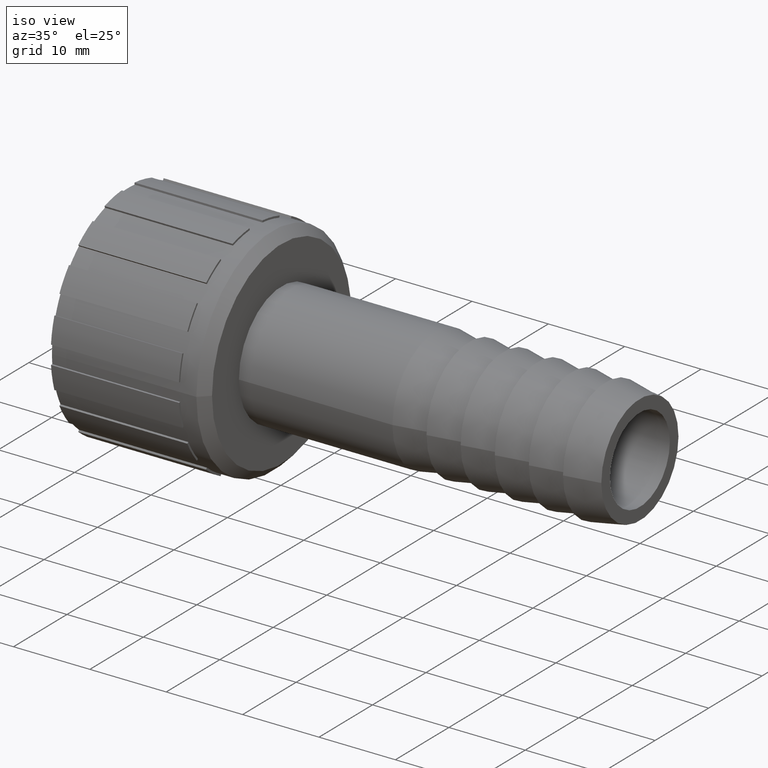
[diagram: clean part render]
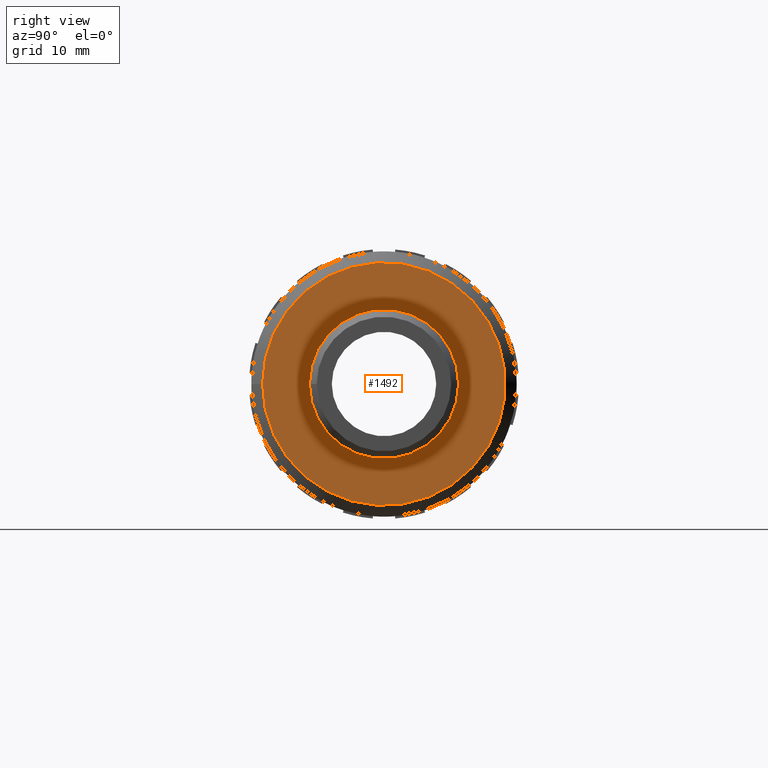
[diagram: tour spotlight — one face highlighted and labeled with its STEP entity id]
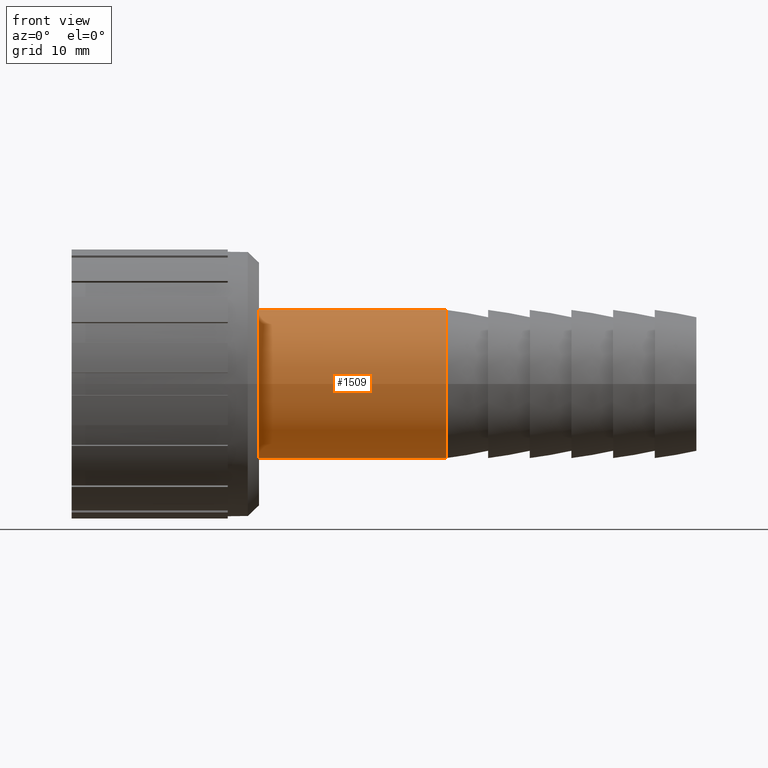
[diagram: tour spotlight — one face highlighted and labeled with its STEP entity id]
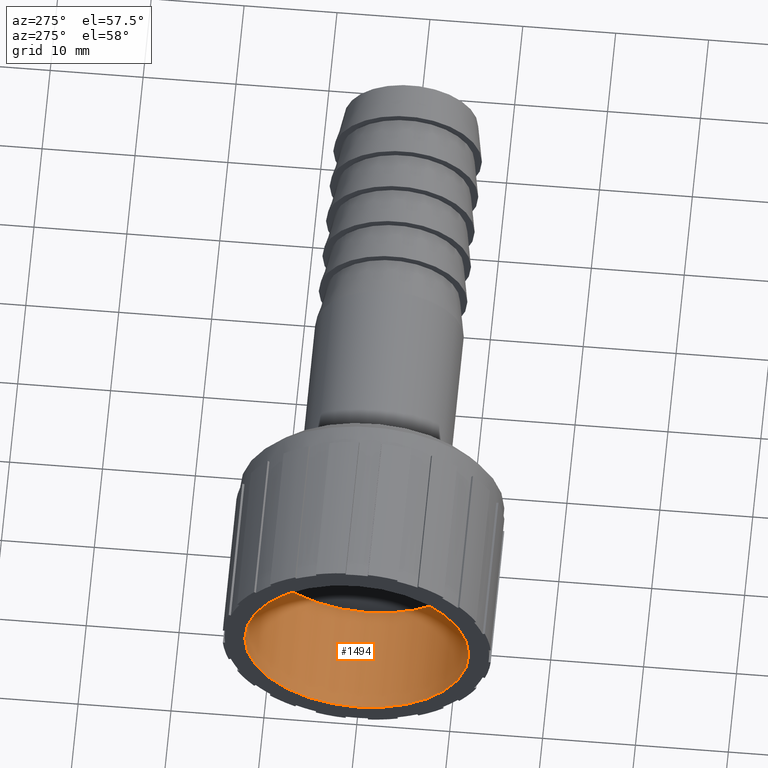
[diagram: tour spotlight — one face highlighted and labeled with its STEP entity id]
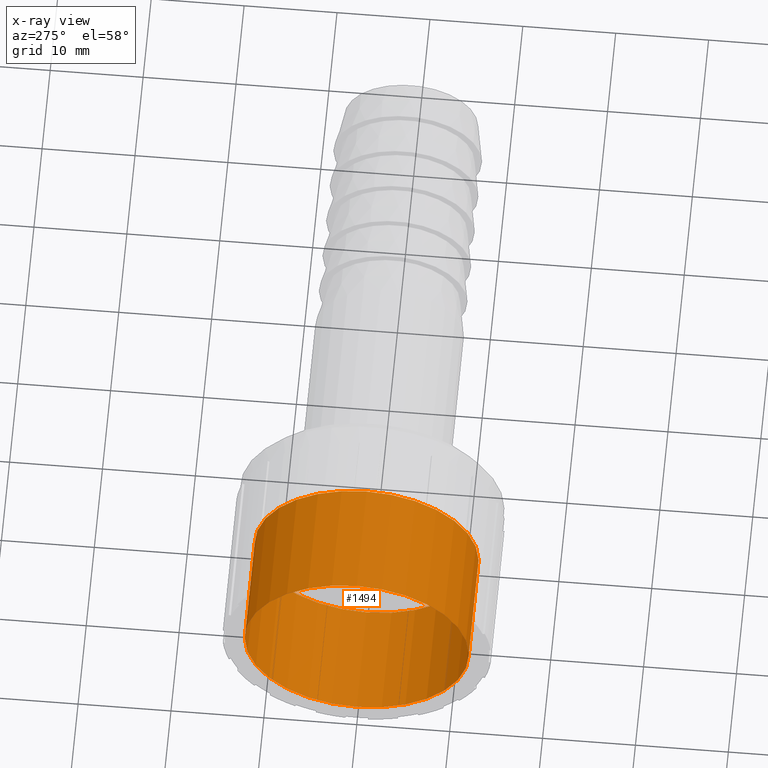
[diagram: x-ray of the same camera — body ghosted, this tour face saturated]
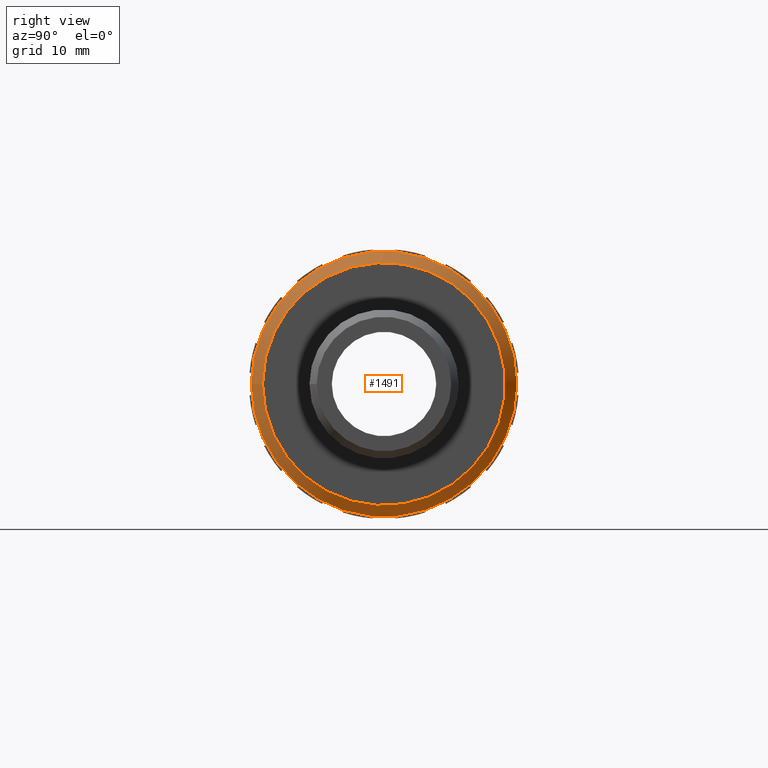
[diagram: tour spotlight — one face highlighted and labeled with its STEP entity id]
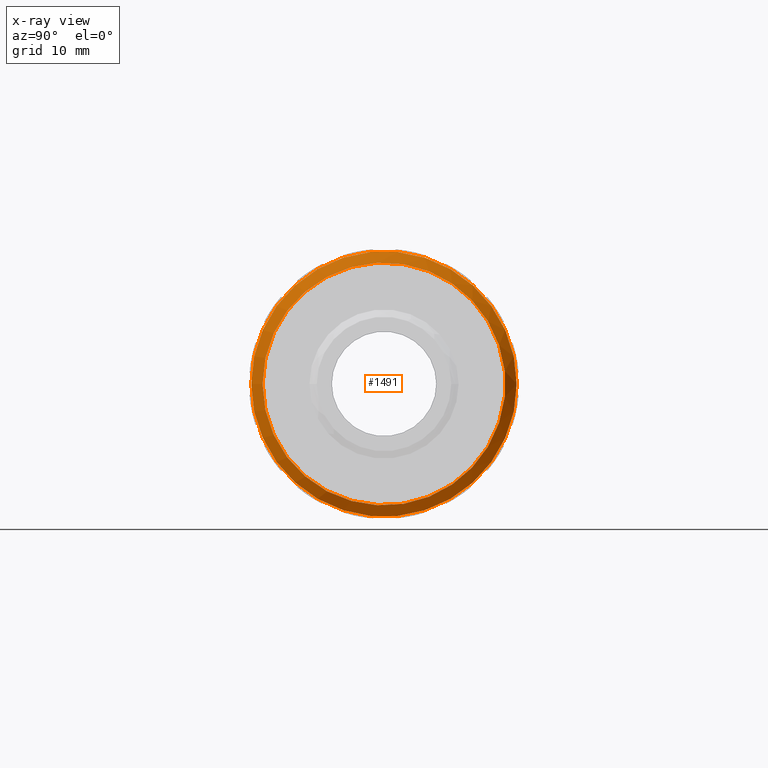
[diagram: x-ray of the same camera — body ghosted, this tour face saturated]
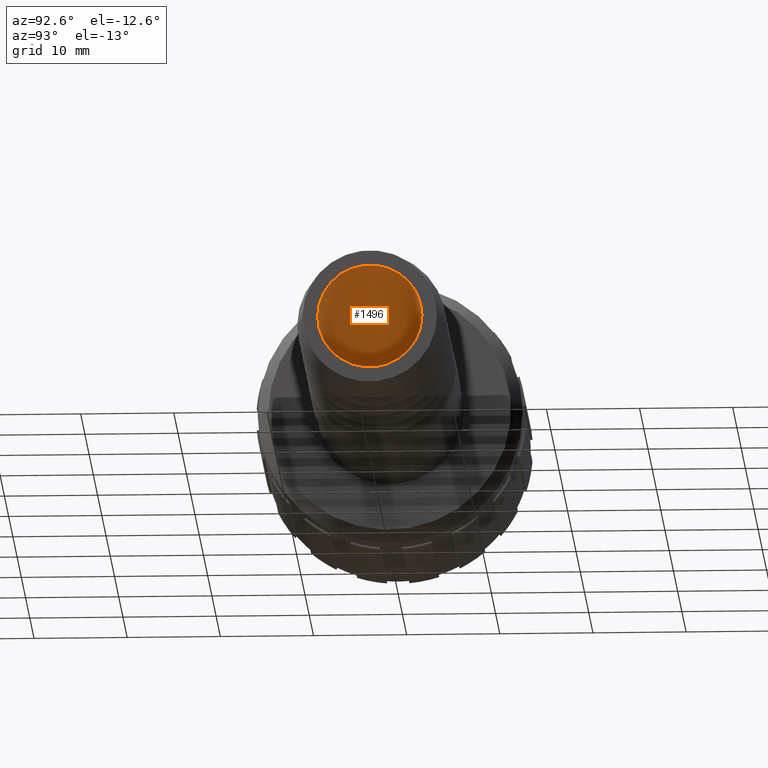
[diagram: tour spotlight — one face highlighted and labeled with its STEP entity id]
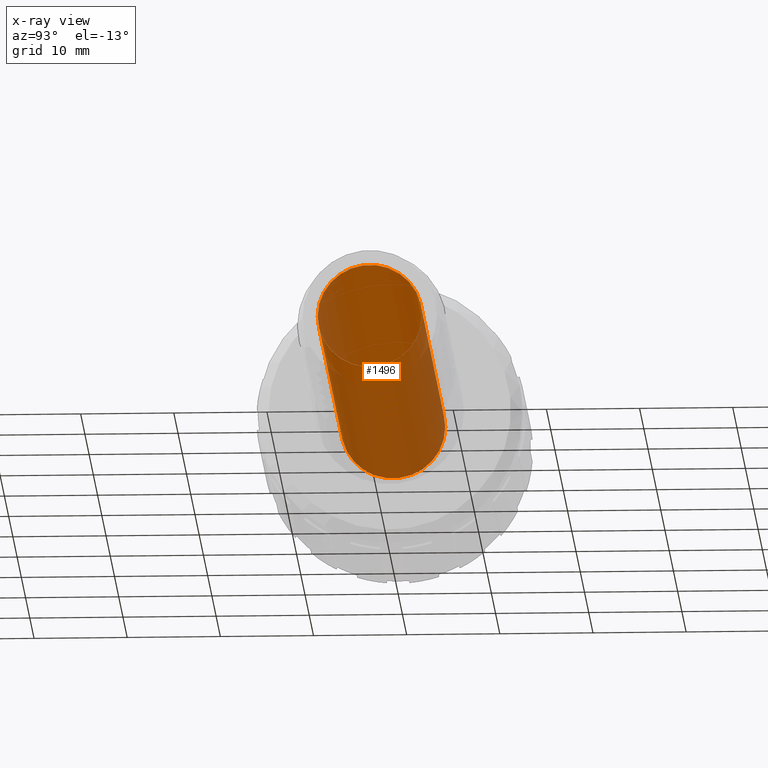
[diagram: x-ray of the same camera — body ghosted, this tour face saturated]
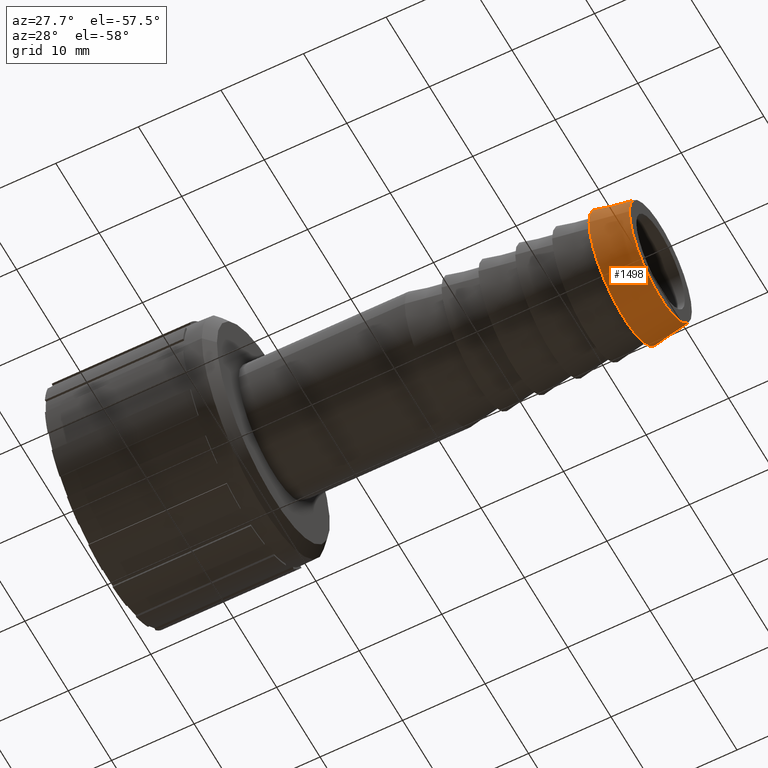
[diagram: tour spotlight — one face highlighted and labeled with its STEP entity id]
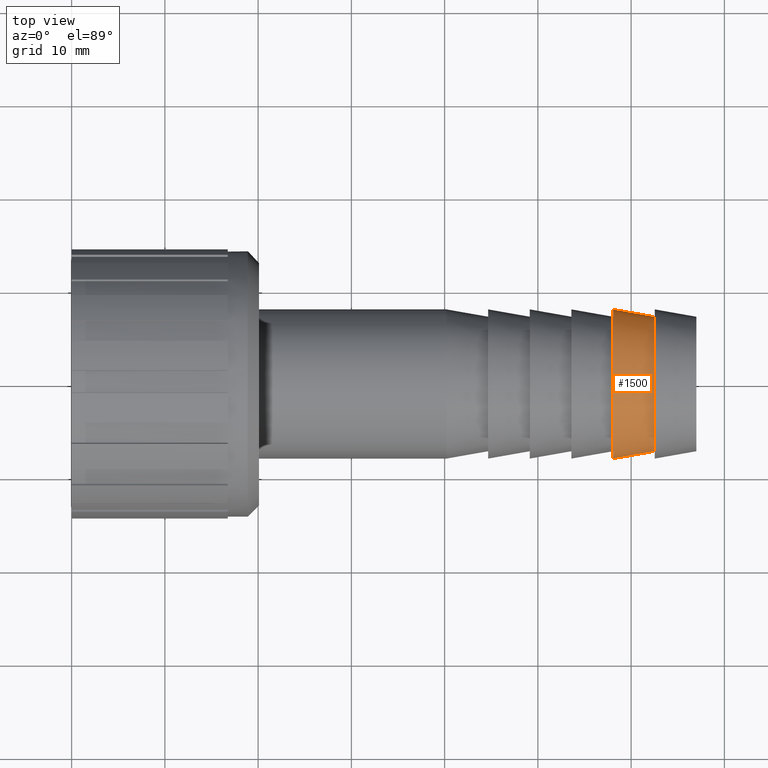
[diagram: tour spotlight — one face highlighted and labeled with its STEP entity id]
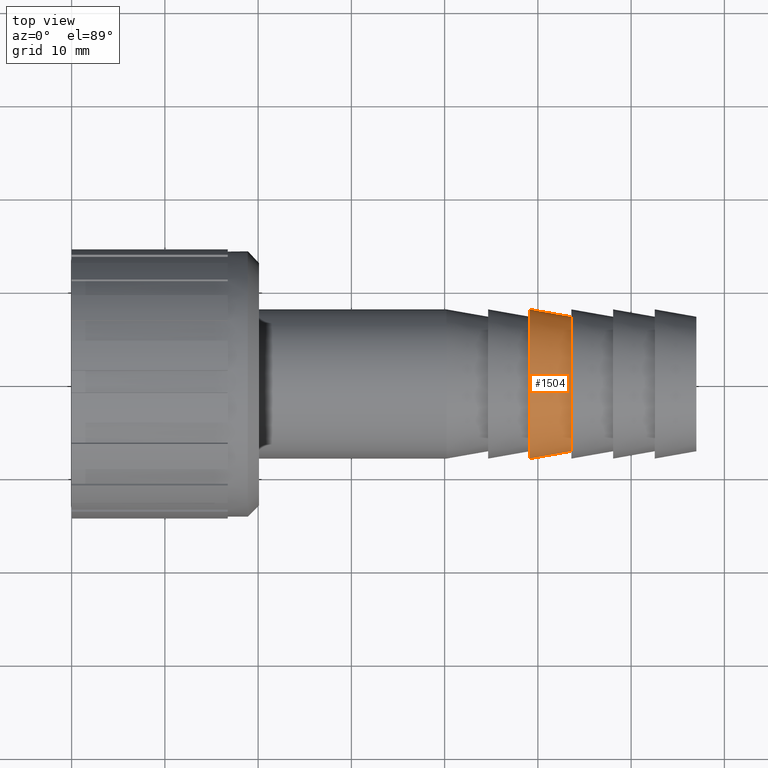
[diagram: tour spotlight — one face highlighted and labeled with its STEP entity id]
A machine part: a face-by-face anatomy tour. The part has 84 B-rep faces; the first image is the clean iso view, then the 8 largest visible faces are spotlighted one at a time (largest first), each with its STEP entity span.

Face 1 — right view, entity #1492. In plain terms, the highlighted planar face has unit normal (1, 0, 0).
Definition (entity closure, byte-faithful):
#44=FACE_BOUND('',#298,.T.);
#127=CIRCLE('',#1643,13.02318);
#129=CIRCLE('',#1646,8.);
#211=FACE_OUTER_BOUND('',#297,.T.);
#297=EDGE_LOOP('',(#1270));
#298=EDGE_LOOP('',(#1271));
#718=VERTEX_POINT('',#2532);
#720=VERTEX_POINT('',#2537);
#929=EDGE_CURVE('',#718,#718,#127,.T.);
#931=EDGE_CURVE('',#720,#720,#129,.T.);
#1270=ORIENTED_EDGE('',*,*,#929,.F.);
#1271=ORIENTED_EDGE('',*,*,#931,.T.);
#1418=PLANE('',#1645);
#1492=ADVANCED_FACE('',(#211,#44),#1418,.T.);
#1643=AXIS2_PLACEMENT_3D('',#2533,#2071,#2072);
#1645=AXIS2_PLACEMENT_3D('',#2536,#2075,#2076);
#1646=AXIS2_PLACEMENT_3D('',#2538,#2077,#2078);
#2071=DIRECTION('center_axis',(-1.,0.,0.));
#2072=DIRECTION('ref_axis',(0.,1.,0.));
#2075=DIRECTION('center_axis',(1.,0.,0.));
#2076=DIRECTION('ref_axis',(0.,0.,-1.));
#2077=DIRECTION('center_axis',(-1.,0.,0.));
#2078=DIRECTION('ref_axis',(0.,0.,1.));
#2532=CARTESIAN_POINT('',(20.1,-13.02318,1.59487957017198E-15));
#2533=CARTESIAN_POINT('Origin',(20.1,0.,0.));
#2536=CARTESIAN_POINT('Origin',(20.1,-14.22903,0.));
#2537=CARTESIAN_POINT('',(20.1,-8.,0.));
#2538=CARTESIAN_POINT('Origin',(20.1,0.,0.));

Face 2 — front view, entity #1509. In plain terms, the highlighted cylindrical surface (bore or boss wall) has radius 8 mm, axis along (-1, 0, 0).
Definition (entity closure, byte-faithful):
#41=CYLINDRICAL_SURFACE('',#1678,8.);
#61=FACE_BOUND('',#332,.T.);
#129=CIRCLE('',#1646,8.);
#144=CIRCLE('',#1677,8.);
#228=FACE_OUTER_BOUND('',#331,.T.);
#331=EDGE_LOOP('',(#1367));
#332=EDGE_LOOP('',(#1368));
#720=VERTEX_POINT('',#2537);
#735=VERTEX_POINT('',#2583);
#931=EDGE_CURVE('',#720,#720,#129,.T.);
#946=EDGE_CURVE('',#735,#735,#144,.T.);
#1367=ORIENTED_EDGE('',*,*,#946,.T.);
#1368=ORIENTED_EDGE('',*,*,#931,.F.);
#1509=ADVANCED_FACE('',(#228,#61),#41,.T.);
#1646=AXIS2_PLACEMENT_3D('',#2538,#2077,#2078);
#1677=AXIS2_PLACEMENT_3D('',#2584,#2139,#2140);
#1678=AXIS2_PLACEMENT_3D('',#2585,#2141,#2142);
#2077=DIRECTION('center_axis',(-1.,0.,0.));
#2078=DIRECTION('ref_axis',(0.,0.,1.));
#2139=DIRECTION('center_axis',(-1.,0.,0.));
#2140=DIRECTION('ref_axis',(0.,0.,1.));
#2141=DIRECTION('center_axis',(-1.,0.,0.));
#2142=DIRECTION('ref_axis',(0.,-1.,0.));
#2537=CARTESIAN_POINT('',(20.1,-8.,0.));
#2538=CARTESIAN_POINT('Origin',(20.1,0.,0.));
#2583=CARTESIAN_POINT('',(40.2,-8.,0.));
#2584=CARTESIAN_POINT('Origin',(40.2,0.,0.));
#2585=CARTESIAN_POINT('Origin',(30.15,0.,0.));

Face 3 — auxiliary view, entity #1494. An x-ray twin of the same camera follows (body ghosted, this face saturated) — the face is partly hidden behind the body. In plain terms, the highlighted cylindrical surface (bore or boss wall) has radius 12.0585 mm, axis along (-1, 0, 0).
Definition (entity closure, byte-faithful):
#39=CYLINDRICAL_SURFACE('',#1648,12.0585);
#46=FACE_BOUND('',#302,.T.);
#94=CIRCLE('',#1575,12.0585);
#130=CIRCLE('',#1649,12.0585);
#213=FACE_OUTER_BOUND('',#301,.T.);
#301=EDGE_LOOP('',(#1337));
#302=EDGE_LOOP('',(#1338));
#713=VERTEX_POINT('',#2453);
#721=VERTEX_POINT('',#2541);
#890=EDGE_CURVE('',#713,#713,#94,.T.);
#932=EDGE_CURVE('',#721,#721,#130,.T.);
#1337=ORIENTED_EDGE('',*,*,#890,.T.);
#1338=ORIENTED_EDGE('',*,*,#932,.F.);
#1494=ADVANCED_FACE('',(#213,#46),#39,.F.);
#1575=AXIS2_PLACEMENT_3D('',#2454,#1929,#1930);
#1648=AXIS2_PLACEMENT_3D('',#2540,#2081,#2082);
#1649=AXIS2_PLACEMENT_3D('',#2542,#2083,#2084);
#1929=DIRECTION('center_axis',(-1.,0.,0.));
#1930=DIRECTION('ref_axis',(0.,0.,1.));
#2081=DIRECTION('center_axis',(-1.,0.,0.));
#2082=DIRECTION('ref_axis',(0.,-1.,0.));
#2083=DIRECTION('center_axis',(-1.,0.,0.));
#2084=DIRECTION('ref_axis',(0.,0.,1.));
#2453=CARTESIAN_POINT('',(0.,-12.0585,0.));
#2454=CARTESIAN_POINT('Origin',(0.,0.,0.));
#2540=CARTESIAN_POINT('Origin',(6.03,0.,0.));
#2541=CARTESIAN_POINT('',(12.06,-12.0585,0.));
#2542=CARTESIAN_POINT('Origin',(12.06,0.,0.));

Face 4 — right view, entity #1491. An x-ray twin of the same camera follows (body ghosted, this face saturated) — the face is partly hidden behind the body. In plain terms, the highlighted conical surface has half-angle 45 deg.
Definition (entity closure, byte-faithful):
#15=CONICAL_SURFACE('',#1642,13.626105,45.);
#43=FACE_BOUND('',#296,.T.);
#127=CIRCLE('',#1643,13.02318);
#128=CIRCLE('',#1644,14.22903);
#210=FACE_OUTER_BOUND('',#295,.T.);
#295=EDGE_LOOP('',(#1268));
#296=EDGE_LOOP('',(#1269));
#718=VERTEX_POINT('',#2532);
#719=VERTEX_POINT('',#2534);
#929=EDGE_CURVE('',#718,#718,#127,.T.);
#930=EDGE_CURVE('',#719,#719,#128,.T.);
#1268=ORIENTED_EDGE('',*,*,#929,.T.);
#1269=ORIENTED_EDGE('',*,*,#930,.T.);
#1491=ADVANCED_FACE('',(#210,#43),#15,.T.);
#1642=AXIS2_PLACEMENT_3D('',#2531,#2069,#2070);
#1643=AXIS2_PLACEMENT_3D('',#2533,#2071,#2072);
#1644=AXIS2_PLACEMENT_3D('',#2535,#2073,#2074);
#2069=DIRECTION('center_axis',(-1.,0.,0.));
#2070=DIRECTION('ref_axis',(0.,1.,0.));
#2071=DIRECTION('center_axis',(-1.,0.,0.));
#2072=DIRECTION('ref_axis',(0.,1.,0.));
#2073=DIRECTION('center_axis',(1.,0.,0.));
#2074=DIRECTION('ref_axis',(0.,1.,0.));
#2531=CARTESIAN_POINT('Origin',(19.497075,0.,0.));
#2532=CARTESIAN_POINT('',(20.1,-13.02318,1.59487957017198E-15));
#2533=CARTESIAN_POINT('Origin',(20.1,0.,0.));
#2534=CARTESIAN_POINT('',(18.89415,-14.22903,-1.74255360444717E-15));
#2535=CARTESIAN_POINT('Origin',(18.89415,0.,0.));

Face 5 — auxiliary view, entity #1496. An x-ray twin of the same camera follows (body ghosted, this face saturated) — the face is partly hidden behind the body. In plain terms, the highlighted cylindrical surface (bore or boss wall) has radius 5.6 mm, axis along (-1, 0, 0).
Definition (entity closure, byte-faithful):
#40=CYLINDRICAL_SURFACE('',#1652,5.6);
#48=FACE_BOUND('',#306,.T.);
#131=CIRCLE('',#1651,5.6);
#132=CIRCLE('',#1653,5.6);
#215=FACE_OUTER_BOUND('',#305,.T.);
#305=EDGE_LOOP('',(#1341));
#306=EDGE_LOOP('',(#1342));
#722=VERTEX_POINT('',#2544);
#723=VERTEX_POINT('',#2547);
#933=EDGE_CURVE('',#722,#722,#131,.T.);
#934=EDGE_CURVE('',#723,#723,#132,.T.);
#1341=ORIENTED_EDGE('',*,*,#933,.T.);
#1342=ORIENTED_EDGE('',*,*,#934,.F.);
#1496=ADVANCED_FACE('',(#215,#48),#40,.F.);
#1651=AXIS2_PLACEMENT_3D('',#2545,#2087,#2088);
#1652=AXIS2_PLACEMENT_3D('',#2546,#2089,#2090);
#1653=AXIS2_PLACEMENT_3D('',#2548,#2091,#2092);
#2087=DIRECTION('center_axis',(-1.,0.,0.));
#2088=DIRECTION('ref_axis',(0.,0.,1.));
#2089=DIRECTION('center_axis',(-1.,0.,0.));
#2090=DIRECTION('ref_axis',(0.,-1.,0.));
#2091=DIRECTION('center_axis',(-1.,0.,0.));
#2092=DIRECTION('ref_axis',(0.,0.,1.));
#2544=CARTESIAN_POINT('',(12.06,-5.6,0.));
#2545=CARTESIAN_POINT('Origin',(12.06,0.,0.));
#2546=CARTESIAN_POINT('Origin',(39.53,0.,0.));
#2547=CARTESIAN_POINT('',(67.,-5.6,0.));
#2548=CARTESIAN_POINT('Origin',(67.,0.,0.));

Face 6 — auxiliary view, entity #1498. In plain terms, the highlighted conical surface has half-angle 10 deg.
Definition (entity closure, byte-faithful):
#16=CONICAL_SURFACE('',#1656,7.60620307641776,9.99999999999999);
#50=FACE_BOUND('',#310,.T.);
#133=CIRCLE('',#1655,7.21240615283552);
#134=CIRCLE('',#1657,8.);
#217=FACE_OUTER_BOUND('',#309,.T.);
#309=EDGE_LOOP('',(#1345));
#310=EDGE_LOOP('',(#1346));
#724=VERTEX_POINT('',#2550);
#725=VERTEX_POINT('',#2553);
#935=EDGE_CURVE('',#724,#724,#133,.T.);
#936=EDGE_CURVE('',#725,#725,#134,.T.);
#1345=ORIENTED_EDGE('',*,*,#935,.T.);
#1346=ORIENTED_EDGE('',*,*,#936,.F.);
#1498=ADVANCED_FACE('',(#217,#50),#16,.T.);
#1655=AXIS2_PLACEMENT_3D('',#2551,#2095,#2096);
#1656=AXIS2_PLACEMENT_3D('',#2552,#2097,#2098);
#1657=AXIS2_PLACEMENT_3D('',#2554,#2099,#2100);
#2095=DIRECTION('center_axis',(-1.,0.,0.));
#2096=DIRECTION('ref_axis',(0.,0.,1.));
#2097=DIRECTION('center_axis',(-1.,0.,0.));
#2098=DIRECTION('ref_axis',(0.,-1.,0.));
#2099=DIRECTION('center_axis',(-1.,0.,0.));
#2100=DIRECTION('ref_axis',(0.,0.,1.));
#2550=CARTESIAN_POINT('',(67.,-7.21240615283552,0.));
#2551=CARTESIAN_POINT('Origin',(67.,0.,0.));
#2552=CARTESIAN_POINT('Origin',(64.7666666666667,0.,0.));
#2553=CARTESIAN_POINT('',(62.5333333333333,-8.,0.));
#2554=CARTESIAN_POINT('Origin',(62.5333333333333,0.,0.));

Face 7 — top view, entity #1500. In plain terms, the highlighted conical surface has half-angle 10 deg.
Definition (entity closure, byte-faithful):
#17=CONICAL_SURFACE('',#1660,7.60620307641777,9.9999999999999);
#52=FACE_BOUND('',#314,.T.);
#135=CIRCLE('',#1659,7.21240615283553);
#136=CIRCLE('',#1661,8.);
#219=FACE_OUTER_BOUND('',#313,.T.);
#313=EDGE_LOOP('',(#1349));
#314=EDGE_LOOP('',(#1350));
#726=VERTEX_POINT('',#2556);
#727=VERTEX_POINT('',#2559);
#937=EDGE_CURVE('',#726,#726,#135,.T.);
#938=EDGE_CURVE('',#727,#727,#136,.T.);
#1349=ORIENTED_EDGE('',*,*,#937,.T.);
#1350=ORIENTED_EDGE('',*,*,#938,.F.);
#1500=ADVANCED_FACE('',(#219,#52),#17,.T.);
#1659=AXIS2_PLACEMENT_3D('',#2557,#2103,#2104);
#1660=AXIS2_PLACEMENT_3D('',#2558,#2105,#2106);
#1661=AXIS2_PLACEMENT_3D('',#2560,#2107,#2108);
#2103=DIRECTION('center_axis',(-1.,0.,0.));
#2104=DIRECTION('ref_axis',(0.,0.,1.));
#2105=DIRECTION('center_axis',(-1.,0.,0.));
#2106=DIRECTION('ref_axis',(0.,-1.,0.));
#2107=DIRECTION('center_axis',(-1.,0.,0.));
#2108=DIRECTION('ref_axis',(0.,0.,1.));
#2556=CARTESIAN_POINT('',(62.5333333333333,-7.21240615283553,0.));
#2557=CARTESIAN_POINT('Origin',(62.5333333333333,0.,0.));
#2558=CARTESIAN_POINT('Origin',(60.3,0.,0.));
#2559=CARTESIAN_POINT('',(58.0666666666666,-8.,0.));
#2560=CARTESIAN_POINT('Origin',(58.0666666666666,0.,0.));

Face 8 — top view, entity #1504. In plain terms, the highlighted conical surface has half-angle 10 deg.
Definition (entity closure, byte-faithful):
#19=CONICAL_SURFACE('',#1668,7.60620307641777,10.);
#56=FACE_BOUND('',#322,.T.);
#139=CIRCLE('',#1667,7.21240615283553);
#140=CIRCLE('',#1669,8.);
#223=FACE_OUTER_BOUND('',#321,.T.);
#321=EDGE_LOOP('',(#1357));
#322=EDGE_LOOP('',(#1358));
#730=VERTEX_POINT('',#2568);
#731=VERTEX_POINT('',#2571);
#941=EDGE_CURVE('',#730,#730,#139,.T.);
#942=EDGE_CURVE('',#731,#731,#140,.T.);
#1357=ORIENTED_EDGE('',*,*,#941,.T.);
#1358=ORIENTED_EDGE('',*,*,#942,.F.);
#1504=ADVANCED_FACE('',(#223,#56),#19,.T.);
#1667=AXIS2_PLACEMENT_3D('',#2569,#2119,#2120);
#1668=AXIS2_PLACEMENT_3D('',#2570,#2121,#2122);
#1669=AXIS2_PLACEMENT_3D('',#2572,#2123,#2124);
#2119=DIRECTION('center_axis',(-1.,0.,0.));
#2120=DIRECTION('ref_axis',(0.,0.,1.));
#2121=DIRECTION('center_axis',(-1.,0.,0.));
#2122=DIRECTION('ref_axis',(0.,-1.,0.));
#2123=DIRECTION('center_axis',(-1.,0.,0.));
#2124=DIRECTION('ref_axis',(0.,0.,1.));
#2568=CARTESIAN_POINT('',(53.5999999999999,-7.21240615283553,0.));
#2569=CARTESIAN_POINT('Origin',(53.5999999999999,0.,0.));
#2570=CARTESIAN_POINT('Origin',(51.3666666666666,0.,0.));
#2571=CARTESIAN_POINT('',(49.1333333333333,-8.,0.));
#2572=CARTESIAN_POINT('Origin',(49.1333333333333,0.,0.));